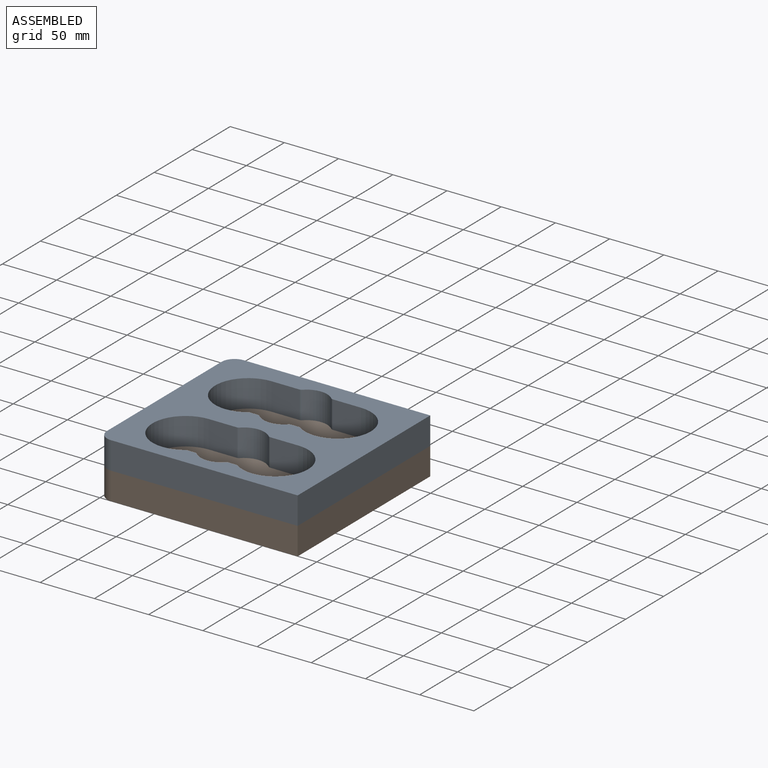
[diagram: assembled view]
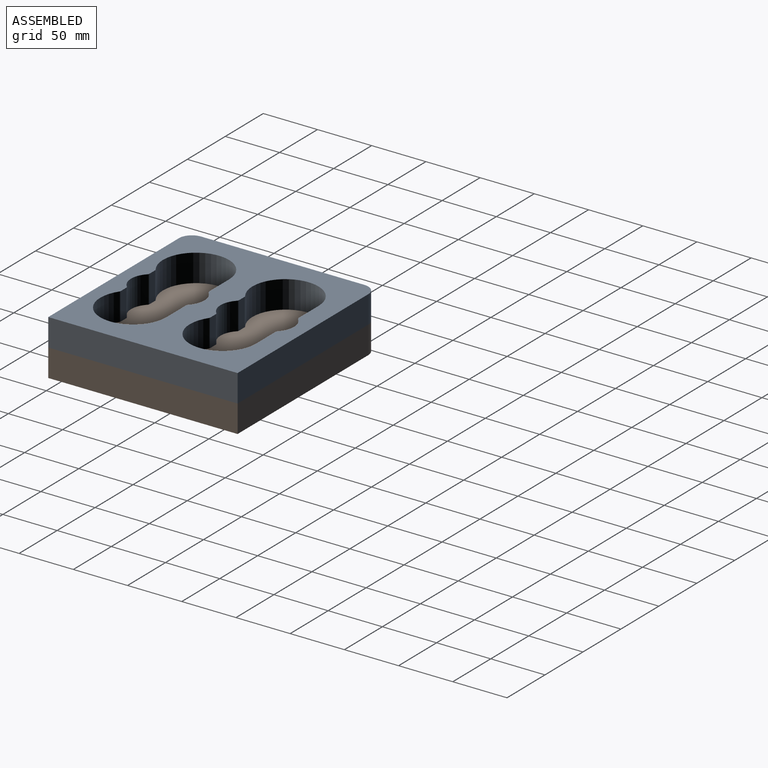
[diagram: assembled view, second angle]
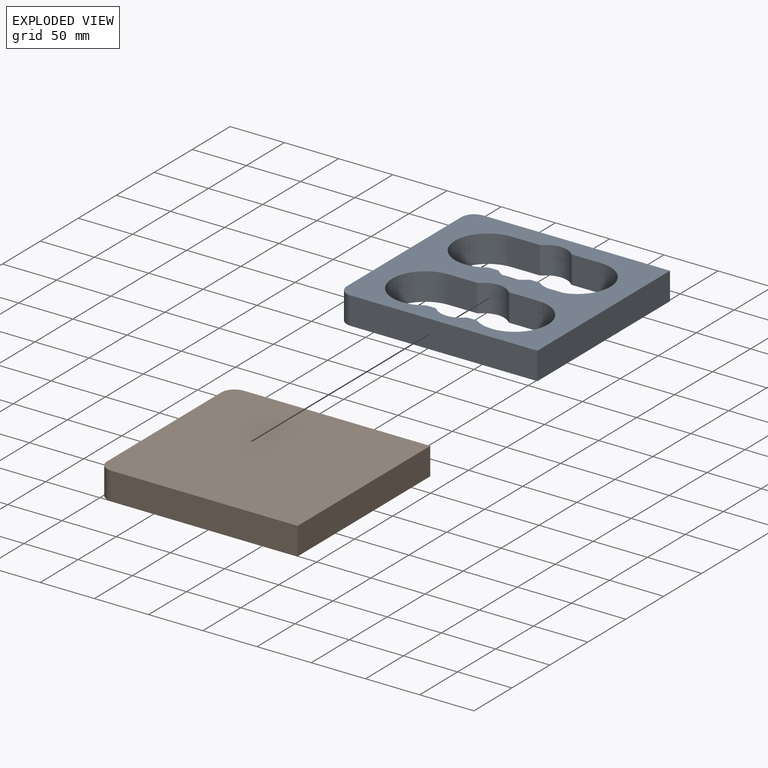
[diagram: exploded view]
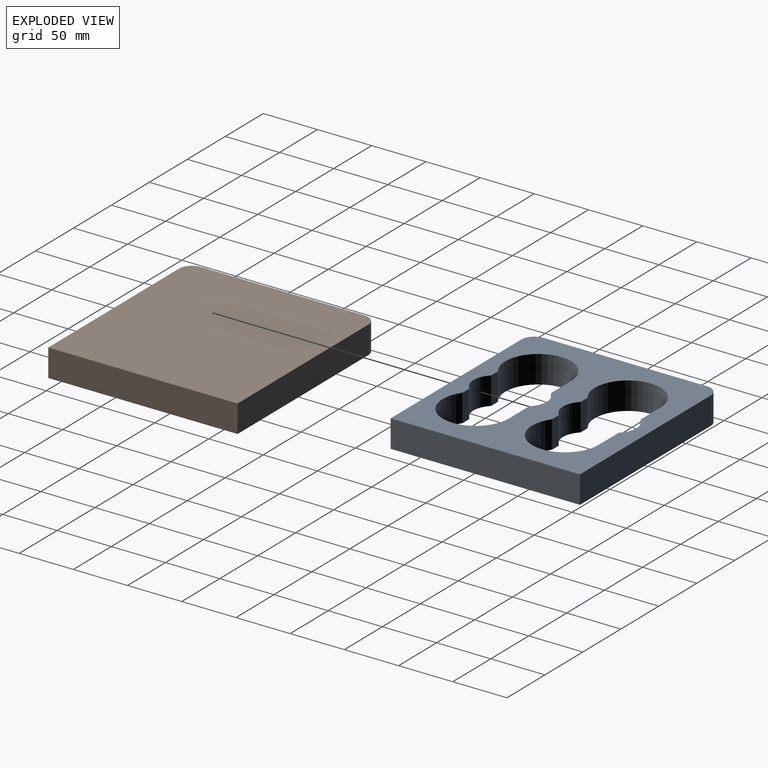
[diagram: exploded view, second angle]
ASSEMBLY  parts=2 mates=3
PART A: 36 faces, bbox 184.2x174.6x25.4 mm
  f0: plane 184.15x174.63mm, normal (0,0,1), area 16371.7mm2, adj f2,f3,f4,f5,f6,f7,f8,f9
  f1: plane 184.15x174.63mm, normal (0,0,-1), area 16371.7mm2, adj f2,f3,f4,f5,f6,f7,f8,f9
  f2: plane 172.15x25.4mm, normal (0,1,0), area 4372.6mm2, adj f0,f1,f3,f7
  f3: cylinder r=12mm len=25.4mm, axis (0,0,-1), area 478.8mm2, adj f0,f1,f2,f4
  f4: plane 150.62x25.4mm, normal (-1,0,0), area 3825.8mm2, adj f0,f1,f3,f5
  f5: cylinder r=12mm len=25.4mm, axis (0,0,-1), area 478.8mm2, adj f0,f1,f4,f6
  f6: plane 172.15x25.4mm, normal (0,-1,0), area 4372.6mm2, adj f0,f1,f5,f7
  f7: plane 174.63x25.4mm, normal (1,0,0), area 4435.5mm2, adj f0,f1,f2,f6
  f8: cylinder r=2.54mm len=25.4mm, axis (0,0,-1), area 50.8mm2, adj f0,f1,f9,f21
  f9: plane 25.4x7.23mm, normal (0,1,0), area 183.6mm2, adj f0,f1,f8,f10
  f10: cylinder r=2.54mm len=25.4mm, axis (0,0,-1), area 39mm2, adj f0,f1,f9,f11
  f11: cylinder r=30.48mm len=60.96mm, axis (0,0,-1), area 2899.8mm2, adj f0,f1,f10,f12
  f12: plane 25.98x25.4mm, normal (0,-1,0), area 659.9mm2, adj f0,f1,f11,f13
  f13: cylinder r=2.54mm len=25.4mm, axis (0,0,-1), area 50.8mm2, adj f0,f1,f12,f14
  f14: cylinder r=19.05mm len=26.99mm, axis (0,0,-1), area 761.7mm2, adj f0,f1,f13,f15
  f15: cylinder r=2.54mm len=25.4mm, axis (0,0,-1), area 50.8mm2, adj f0,f1,f14,f16
  f16: plane 25.98x25.4mm, normal (0,-1,0), area 659.9mm2, adj f0,f1,f15,f17
  f17: cylinder r=30.48mm len=60.96mm, axis (0,0,-1), area 2899.8mm2, adj f0,f1,f16,f18
  f18: cylinder r=2.54mm len=25.4mm, axis (0,0,-1), area 39mm2, adj f0,f1,f17,f19
  f19: plane 25.4x7.23mm, normal (0,1,0), area 183.6mm2, adj f0,f1,f18,f20
  f20: cylinder r=2.54mm len=25.4mm, axis (0,0,-1), area 50.8mm2, adj f0,f1,f19,f21
  f21: cylinder r=19.05mm len=26.99mm, axis (0,0,-1), area 761.7mm2, adj f0,f1,f8,f20
  f22: cylinder r=2.54mm len=25.4mm, axis (0,0,-1), area 50.8mm2, adj f0,f1,f23,f35
  f23: plane 25.4x7.23mm, normal (0,1,0), area 183.6mm2, adj f0,f1,f22,f24
  f24: cylinder r=2.54mm len=25.4mm, axis (0,0,-1), area 39mm2, adj f0,f1,f23,f25
  f25: cylinder r=30.48mm len=60.96mm, axis (0,0,-1), area 2899.8mm2, adj f0,f1,f24,f26
  f26: plane 25.98x25.4mm, normal (0,-1,0), area 659.9mm2, adj f0,f1,f25,f27
  f27: cylinder r=2.54mm len=25.4mm, axis (0,0,-1), area 50.8mm2, adj f0,f1,f26,f28
  f28: cylinder r=19.05mm len=26.99mm, axis (0,0,-1), area 761.7mm2, adj f0,f1,f27,f29
  f29: cylinder r=2.54mm len=25.4mm, axis (0,0,-1), area 50.8mm2, adj f0,f1,f28,f30
  f30: plane 25.98x25.4mm, normal (0,-1,0), area 659.9mm2, adj f0,f1,f29,f31
  f31: cylinder r=30.48mm len=60.96mm, axis (0,0,-1), area 2899.8mm2, adj f0,f1,f30,f32
  f32: cylinder r=2.54mm len=25.4mm, axis (0,0,-1), area 39mm2, adj f0,f1,f31,f33
  f33: plane 25.4x7.23mm, normal (0,1,0), area 183.6mm2, adj f0,f1,f32,f34
  f34: cylinder r=2.54mm len=25.4mm, axis (0,0,-1), area 50.8mm2, adj f0,f1,f33,f35
  f35: cylinder r=19.05mm len=26.99mm, axis (0,0,-1), area 761.7mm2, adj f0,f1,f22,f34
PART B: 8 faces, bbox 184.2x174.6x25.4 mm
  f0: plane 172.15x25.4mm, normal (0,1,0), area 4372.6mm2, adj f1,f5,f6,f7
  f1: cylinder r=12mm len=25.4mm, axis (0,0,-1), area 478.8mm2, adj f0,f2,f6,f7
  f2: plane 150.62x25.4mm, normal (-1,0,0), area 3825.8mm2, adj f1,f3,f6,f7
  f3: cylinder r=12mm len=25.4mm, axis (0,0,-1), area 478.8mm2, adj f2,f4,f6,f7
  f4: plane 172.15x25.4mm, normal (0,-1,0), area 4372.6mm2, adj f3,f5,f6,f7
  f5: plane 174.63x25.4mm, normal (1,0,0), area 4435.5mm2, adj f0,f4,f6,f7
  f6: plane 184.15x174.63mm, normal (0,0,1), area 32095.4mm2, adj f0,f1,f2,f3,f4,f5
  f7: plane 184.15x174.63mm, normal (0,0,-1), area 32095.4mm2, adj f0,f1,f2,f3,f4,f5
PLACE A t=(-54.72,30.3,74.33)mm
PLACE B t=(-54.72,30.3,48.93)mm
MATE planar B.f0 <-> A.f2  axis (0,1,0) through (-48.72,117.61,61.63)mm
MATE planar B.f6 <-> A.f1  axis (0,0,1) through (-54.55,30.3,74.33)mm
MATE planar A.f7 <-> B.f5  axis (1,0,0) through (37.35,30.3,87.03)mm
